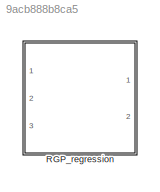
MODEL slx_9acb888b8ca5
KIND library
CONFIG AbsTol = auto
CONFIG EnableMultiTasking = off
CONFIG FixedStep = auto
CONFIG MaxStep = auto
CONFIG MinStep = auto
CONFIG RelTol = 1e-3
CONFIG SampleTimeConstraint = Unconstrained
CONFIG Solver = VariableStepAuto
CONFIG SolverName = VariableStepAuto
CONFIG StartTime = 0.0
CONFIG StopTime = 10.0
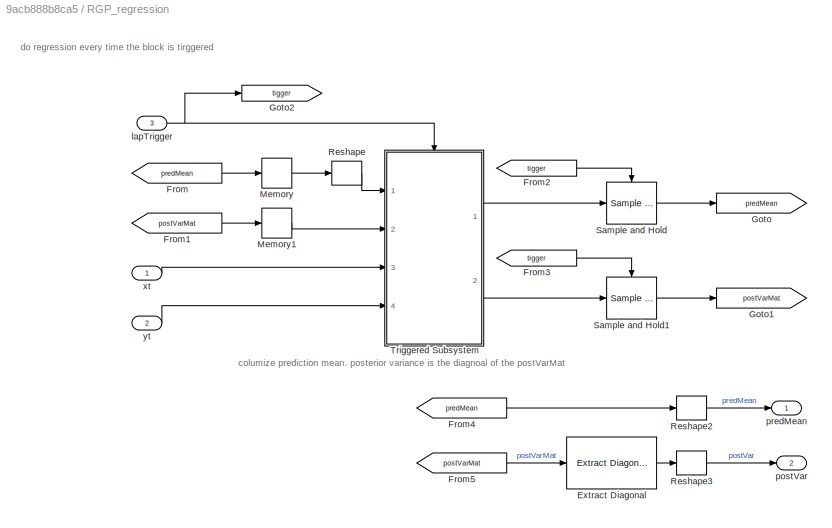
BLOCK [SubSystem] RGP_regression
  Ports = [3, 2]
  RequestExecContextInheritance = off
BLOCK [Reference] RGP_regression/Extract Diagonal  REF=dspmtrx3/Extract Diagonal
  Ports = [1, 1]
  SourceBlock = dspmtrx3/Extract Diagonal
  SourceProductBaseCode = DS
  SourceType = Extract Diagonal
BLOCK [From] RGP_regression/From
  GotoTag = predMean
BLOCK [From] RGP_regression/From1
  GotoTag = postVarMat
BLOCK [From] RGP_regression/From2
  GotoTag = tigger
BLOCK [From] RGP_regression/From3
  GotoTag = tigger
BLOCK [From] RGP_regression/From4
  GotoTag = predMean
BLOCK [From] RGP_regression/From5
  GotoTag = postVarMat
BLOCK [Goto] RGP_regression/Goto
  GotoTag = predMean
BLOCK [Goto] RGP_regression/Goto1
  GotoTag = postVarMat
BLOCK [Goto] RGP_regression/Goto2
  GotoTag = tigger
BLOCK [Memory] RGP_regression/Memory
  InitialCondition = meanFcnVec
BLOCK [Memory] RGP_regression/Memory1
  InitialCondition = basisCovMat
BLOCK [Reshape] RGP_regression/Reshape
  OutputDimensionality = Row vector (2-D)
  Ports = [1, 1]
BLOCK [Reshape] RGP_regression/Reshape2
  OutputDimensionality = Column vector (2-D)
  Ports = [1, 1]
BLOCK [Reshape] RGP_regression/Reshape3
  OutputDimensionality = Column vector (2-D)
  Ports = [1, 1]
BLOCK [Reference] RGP_regression/Sample and Hold  REF=dspsigops/Sample
and Hold
  Ports = [1, 1, 0, 1]
  SourceBlock = dspsigops/Sample\nand Hold
  SourceProductBaseCode = DS
  SourceType = Sample and Hold
BLOCK [Reference] RGP_regression/Sample and Hold1  REF=dspsigops/Sample
and Hold
  Ports = [1, 1, 0, 1]
  SourceBlock = dspsigops/Sample\nand Hold
  SourceProductBaseCode = DS
  SourceType = Sample and Hold
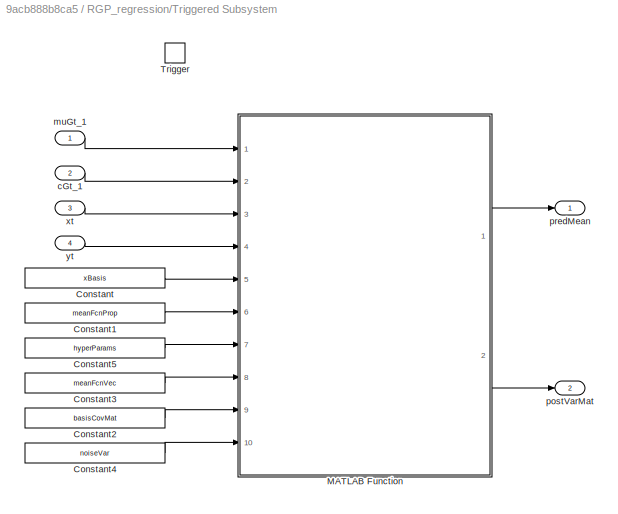
BLOCK [SubSystem] RGP_regression/Triggered Subsystem
  Ports = [4, 2, 0, 1]
  RequestExecContextInheritance = off
  TreatAsAtomicUnit = on
BLOCK [Constant] RGP_regression/Triggered Subsystem/Constant
  Value = xBasis
  VectorParams1D = off
BLOCK [Constant] RGP_regression/Triggered Subsystem/Constant1
  Value = meanFcnProp
  VectorParams1D = off
BLOCK [Constant] RGP_regression/Triggered Subsystem/Constant2
  Value = basisCovMat
  VectorParams1D = off
BLOCK [Constant] RGP_regression/Triggered Subsystem/Constant3
  Value = meanFcnVec
  VectorParams1D = off
BLOCK [Constant] RGP_regression/Triggered Subsystem/Constant4
  Value = noiseVar
  VectorParams1D = off
BLOCK [Constant] RGP_regression/Triggered Subsystem/Constant5
  Value = hyperParams
  VectorParams1D = off
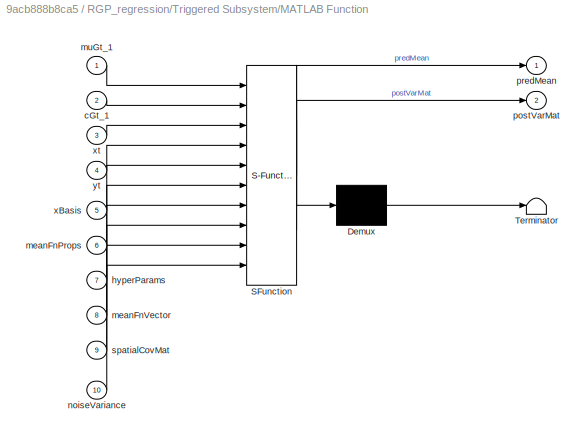
BLOCK [SubSystem] RGP_regression/Triggered Subsystem/MATLAB Function
  ErrorFcn = Stateflow.Translate.translate
  PermitHierarchicalResolution = ExplicitOnly
  Ports = [10, 2]
  RequestExecContextInheritance = off
  SFBlockType = MATLAB Function
  TreatAsAtomicUnit = on
BLOCK [Demux] RGP_regression/Triggered Subsystem/MATLAB Function/ Demux 
  Outputs = 1
  Ports = [1, 1]
BLOCK [S-Function] RGP_regression/Triggered Subsystem/MATLAB Function/ SFunction 
  EnableBusSupport = off
  FunctionName = sf_sfun
  PortCounts = [10 3]
  Ports = [10, 3]
  SFcnIsStateOwnerBlock = off
  SFunctionDeploymentMode = off
  Tag = Stateflow S-Function RGP_regression 2
BLOCK [Terminator] RGP_regression/Triggered Subsystem/MATLAB Function/ Terminator 
BLOCK [Inport] RGP_regression/Triggered Subsystem/MATLAB Function/cGt_1
  Port = 2
BLOCK [Inport] RGP_regression/Triggered Subsystem/MATLAB Function/hyperParams
  Port = 7
BLOCK [Inport] RGP_regression/Triggered Subsystem/MATLAB Function/meanFnProps
  Port = 6
BLOCK [Inport] RGP_regression/Triggered Subsystem/MATLAB Function/meanFnVector
  Port = 8
BLOCK [Inport] RGP_regression/Triggered Subsystem/MATLAB Function/muGt_1
BLOCK [Inport] RGP_regression/Triggered Subsystem/MATLAB Function/noiseVariance
  Port = 10
BLOCK [Outport] RGP_regression/Triggered Subsystem/MATLAB Function/postVarMat
  Port = 2
BLOCK [Outport] RGP_regression/Triggered Subsystem/MATLAB Function/predMean
BLOCK [Inport] RGP_regression/Triggered Subsystem/MATLAB Function/spatialCovMat
  Port = 9
BLOCK [Inport] RGP_regression/Triggered Subsystem/MATLAB Function/xBasis
  Port = 5
BLOCK [Inport] RGP_regression/Triggered Subsystem/MATLAB Function/xt
  Port = 3
BLOCK [Inport] RGP_regression/Triggered Subsystem/MATLAB Function/yt
  Port = 4
BLOCK [TriggerPort] RGP_regression/Triggered Subsystem/Trigger
  Ports = []
  StatesWhenEnabling = held
  VariantControl = Variant
BLOCK [Inport] RGP_regression/Triggered Subsystem/cGt_1
  Port = 2
BLOCK [Inport] RGP_regression/Triggered Subsystem/muGt_1
BLOCK [Outport] RGP_regression/Triggered Subsystem/postVarMat
  Port = 2
BLOCK [Outport] RGP_regression/Triggered Subsystem/predMean
BLOCK [Inport] RGP_regression/Triggered Subsystem/xt
  Port = 3
BLOCK [Inport] RGP_regression/Triggered Subsystem/yt
  Port = 4
BLOCK [Inport] RGP_regression/lapTrigger
  Port = 3
BLOCK [Outport] RGP_regression/postVar
  Port = 2
BLOCK [Outport] RGP_regression/predMean
BLOCK [Inport] RGP_regression/xt
BLOCK [Inport] RGP_regression/yt
  Port = 2
ANNOTATION RGP_regression: columize prediction mean. posterior variance is the diagnoal of the postVarMat
ANNOTATION RGP_regression: do regression every time the block is tirggered
LINE RGP_regression/Extract Diagonal:1 -> RGP_regression/Reshape3:1
LINE RGP_regression/From1:1 -> RGP_regression/Memory1:1
LINE RGP_regression/From2:1 -> RGP_regression/Sample and Hold:trigger
LINE RGP_regression/From3:1 -> RGP_regression/Sample and Hold1:trigger
LINE RGP_regression/From4:1 -> RGP_regression/Reshape2:1
LINE RGP_regression/From5:1 -> RGP_regression/Extract Diagonal:1
LINE RGP_regression/From:1 -> RGP_regression/Memory:1
LINE RGP_regression/Memory1:1 -> RGP_regression/Triggered Subsystem:2
LINE RGP_regression/Memory:1 -> RGP_regression/Reshape:1
LINE RGP_regression/Reshape2:1 -> RGP_regression/predMean:1
LINE RGP_regression/Reshape3:1 -> RGP_regression/postVar:1
LINE RGP_regression/Reshape:1 -> RGP_regression/Triggered Subsystem:1
LINE RGP_regression/Sample and Hold1:1 -> RGP_regression/Goto1:1
LINE RGP_regression/Sample and Hold:1 -> RGP_regression/Goto:1
LINE RGP_regression/Triggered Subsystem/Constant1:1 -> RGP_regression/Triggered Subsystem/MATLAB Function:6
LINE RGP_regression/Triggered Subsystem/Constant2:1 -> RGP_regression/Triggered Subsystem/MATLAB Function:9
LINE RGP_regression/Triggered Subsystem/Constant3:1 -> RGP_regression/Triggered Subsystem/MATLAB Function:8
LINE RGP_regression/Triggered Subsystem/Constant4:1 -> RGP_regression/Triggered Subsystem/MATLAB Function:10
LINE RGP_regression/Triggered Subsystem/Constant5:1 -> RGP_regression/Triggered Subsystem/MATLAB Function:7
LINE RGP_regression/Triggered Subsystem/Constant:1 -> RGP_regression/Triggered Subsystem/MATLAB Function:5
LINE RGP_regression/Triggered Subsystem/MATLAB Function:1 -> RGP_regression/Triggered Subsystem/predMean:1
LINE RGP_regression/Triggered Subsystem/MATLAB Function:2 -> RGP_regression/Triggered Subsystem/postVarMat:1
LINE RGP_regression/Triggered Subsystem/cGt_1:1 -> RGP_regression/Triggered Subsystem/MATLAB Function:2
LINE RGP_regression/Triggered Subsystem/muGt_1:1 -> RGP_regression/Triggered Subsystem/MATLAB Function:1
LINE RGP_regression/Triggered Subsystem/xt:1 -> RGP_regression/Triggered Subsystem/MATLAB Function:3
LINE RGP_regression/Triggered Subsystem/yt:1 -> RGP_regression/Triggered Subsystem/MATLAB Function:4
LINE RGP_regression/Triggered Subsystem:1 -> RGP_regression/Sample and Hold:1
LINE RGP_regression/Triggered Subsystem:2 -> RGP_regression/Sample and Hold1:1
NET RGP_regression/lapTrigger:1 -> RGP_regression/Goto2:1, RGP_regression/Triggered Subsystem:trigger
LINE RGP_regression/xt:1 -> RGP_regression/Triggered Subsystem:3
LINE RGP_regression/yt:1 -> RGP_regression/Triggered Subsystem:4
note: NET lines group one-source signal fan-out (src -> all destinations, sorted); 1:1 wires keep LINE
CHART RGP_regression/Triggered
Subsystem/MATLAB Function states=1 transitions=1
  STATE_LABEL 'eML_blk_kernel()'
  STATE_LABEL 'SCRIPT:\nfunction [predMean,postVarMat] = calcPredMeanAndPostVar(...\n    muGt_1,cGt_1,xt,yt,...%signals\n    xBasis,meanFnProps,hyperParams,... % parameters\n    meanFnVector,spatialCovMat,noiseVariance)\n\n[predMean,postVarMat] = ...\n    calcPredMeanAndPostVar(muGt_1,cGt_1,xt,yt,...%signals\n    xBasis,meanFnProps,hyperParams,...\n    meanFnVector,spatialCovMat,noiseVariance); % parameters\n\nend\n'
